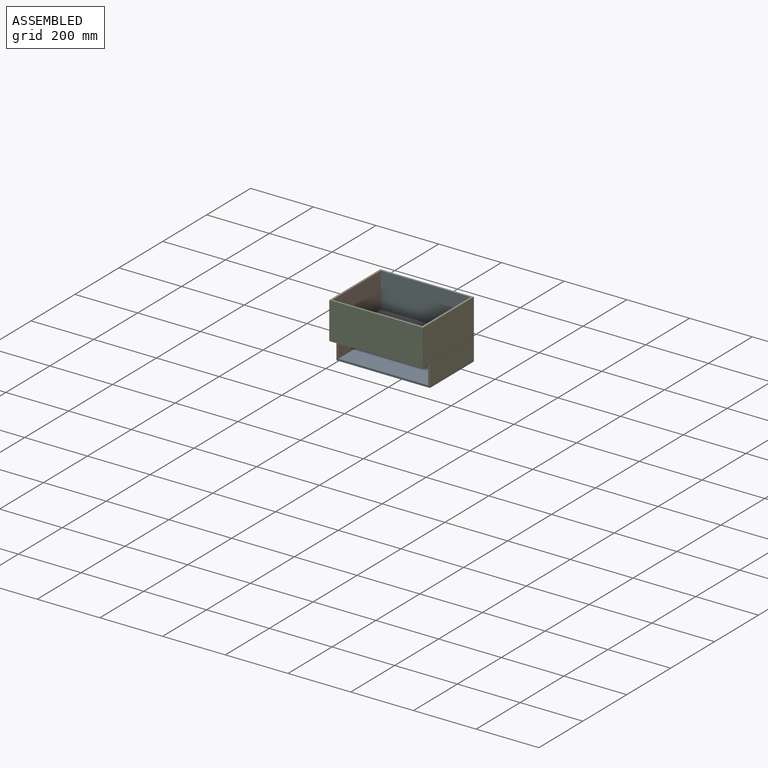
[diagram: assembled view]
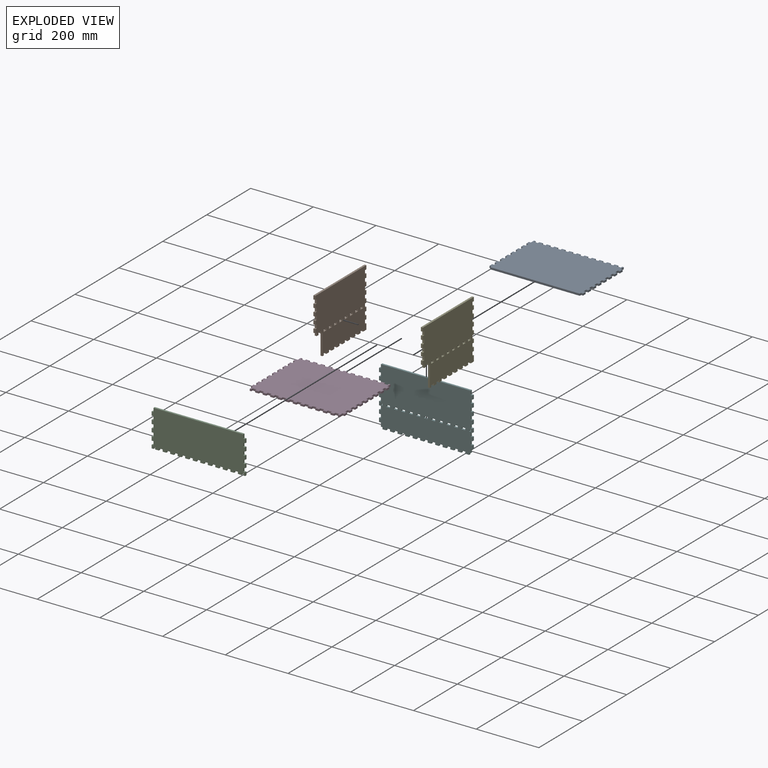
[diagram: exploded view]
GUIDED TOUR — MATED ASSEMBLY (Onshape document dc8e5bcc3b40e1b9c9413de5, AutoMate assembly dc8e5bcc3b40e1b9c9413de5_087644dee2c179cdf5d337a4_95e92eb41b837dada9675b92_default)

This assembly has 6 components, labeled P0..P5 below (a component is one placed occurrence of a part; the same part can appear more than once), held together by 5 mates. A mate is a constraint between two components; its type names the relative motion it leaves free:
  FASTENED — locks the two components together rigidly (no relative motion).
Axis/direction vectors are unit vectors and 'through' points are millimeter coordinates, both in the assembly's world frame.

MATES
  1. FASTENED "Fastened 4": P2 <-> P3, direction (0.000, -1.000, 0.000) through (420.35, -259.68, 232.40) mm
  2. FASTENED "Fastened 1": P4 <-> P3, direction (1.000, 0.000, 0.000) through (431.55, -233.48, 232.40) mm
  3. FASTENED "Fastened 5": P5 <-> P0, direction (0.000, 1.000, 0.000) through (420.35, -27.28, 164.70) mm
  4. FASTENED "Fastened 2": P3 <-> P1, direction (-1.000, 0.000, 0.000) through (133.15, -245.48, 232.40) mm
  5. FASTENED "Fastened 3": P5 <-> P3, direction (0.000, 1.000, 0.000) through (420.35, -27.28, 232.40) mm

ASSEMBLY ORDER
  1. P4 — the base component [order verified]
  2. P1 [order verified]
  3. P5 [order verified]
  4. P0 [order verified]
  5. P3 [order verified]
  6. P2 [order verified]
Order-tag legend:
  [order verified] — this step's position reverses a verified removal order: the component was checked to insert without passing through the ones already placed.

Of the 6 components, 6 carry the full construction recipe — the FeatureScript program that regenerates the part's solid from scratch; the rest are supplied as boundary geometry only.
Each toured component is shown spotlighted twice — in the assembled view, then in the exploded view, where a leader line traces a displaced component back to its assembled socket (saturated green if recipe-attached, orange if geometry-only; every other component desaturated gray) — followed by its recipe or geometry summary and the mates that hold it.
NOTE — document 3 of 3 of this assembly tour. The two overview renders and the header above are repeated from document 1; the component sections below continue where the previous document stopped.
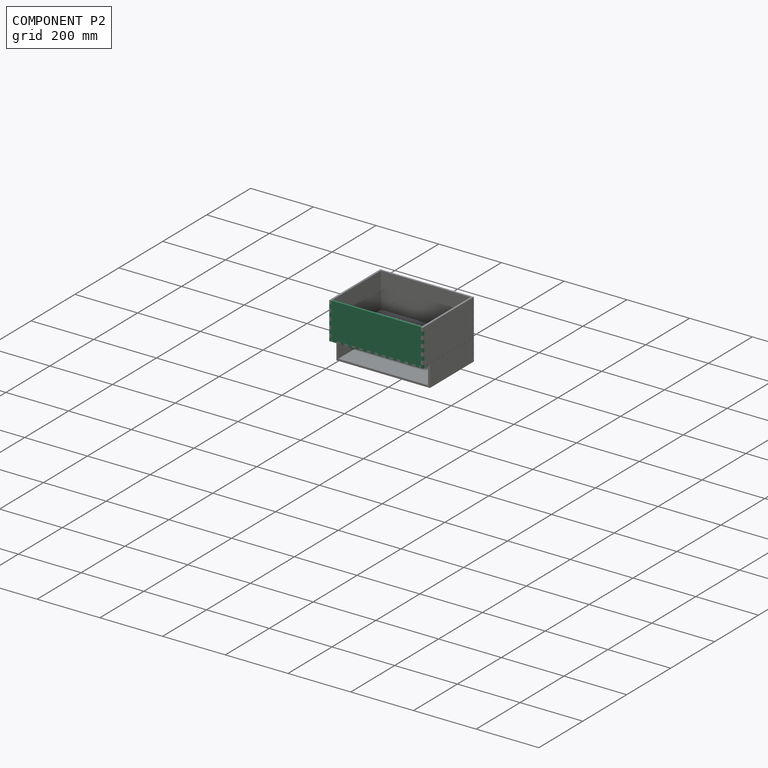
[diagram: component P2 — assembled]
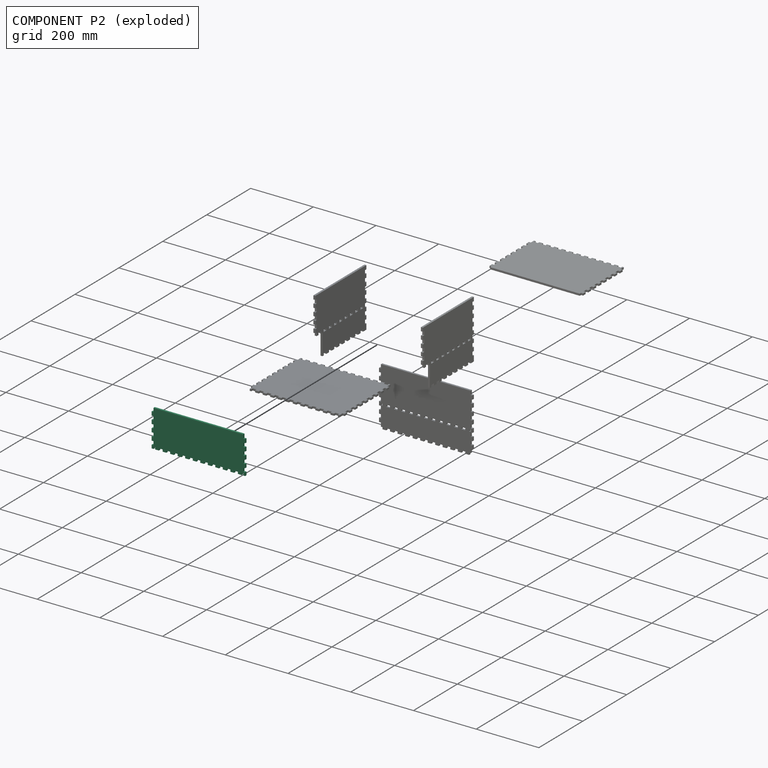
[diagram: component P2 — exploded]
COMPONENT P2 — recipe-attached (CADFS 00861206, mesh-verified: the recipe's output STEP matches this component's geometry to below the mesh-comparison resolution (tessellation chordal tolerance ~0.482 mm)).
Held by: FASTENED mate "Fastened 4" to P3.
Construction recipe (FeatureScript — the CAD program that rebuilds this solid; sketch coordinates are in the units given by the * unit suffixes, e.g. mm):

FeatureScript 1511;
import(path : "onshape/std/geometry.fs", version : "1511.0");
import(path : "onshape/std/common.fs", version : "1511.0");
const mm = millimeter;
const VERTEX = EntityType.VERTEX;
const EDGE = EntityType.EDGE;
const FACE = EntityType.FACE;
const BODY = EntityType.BODY;
function v(x, y){return vector(x, y);}
function OD(order){return orderDisambiguation(order);}
function OSD(set){return originalSetDisambiguation(set);}
function TD(topology){return topologyDisambiguation(topology);}
function TDD(query){return trueDependencyDisambiguation(query);}
function sQuery(a, b, c) {return sketchEntityQuery(a, b, c);}

annotation { "Feature Type Name" : "Feature", "Feature Type Description" : "" }
export const myFeature = defineFeature(function(context is Context, id is Id, definition is map)
    precondition{}
    {
        {
            var Q0;
            Q0=qCreatedBy(makeId("Front.planeOp"),FACE);
            var sketch = newSketch(context, id + "F0", { "sketchPlane" : qUnion([Q0])});
            skLineSegment(sketch, "E0.bottom", {"start": v(143, 90) * mm, "end": v(-143, 90) * mm});
            skLineSegment(sketch, "E0.top", {"start": v(143, -90) * mm, "end": v(-143, -90) * mm});
            skLineSegment(sketch, "E0.left", {"start": v(143, 90) * mm, "end": v(143, -90) * mm});
            skLineSegment(sketch, "E0.right", {"start": v(-143, 90) * mm, "end": v(-143, -90) * mm});
            skPoint(sketch, "E0.middle", {"position": v(0, 0) * mm});
            skSolve(sketch);
        }
        {
            var Q0;
            Q0=makeQuery(id+"F0.imprint","IMPRINT",FACE,{"disambiguationData":[TD([[makeQuery(id+"F0.imprint","IMPRINT",EDGE,{"derivedFrom":sQuery(id+"F0.wireOp",EDGE,"E0.bottom")}),1.0]])]});
            extrude(context, id + "F1", {"entities" : qUnion([Q0]), "depth" : 6.2 * mm, "offsetDistance" : 25 * mm});
        }
        {
            var Q0;
            Q0=makeQuery(id+"F1.opExtrude","CAP_FACE",FACE,{"disambiguationData":[OSD([sQuery(id+"F0.wireOp",EDGE,"E0.bottom"),sQuery(id+"F0.wireOp",EDGE,"E0.top"),sQuery(id+"F0.wireOp",EDGE,"E0.left"),sQuery(id+"F0.wireOp",EDGE,"E0.right")])],"isStart":false});
            var sketch = newSketch(context, id + "F2", { "sketchPlane" : qUnion([Q0])});
            skLineSegment(sketch, "E1", {"start": v(-143, -90) * mm, "end": v(-143, -28.5) * mm, "construction": true});
            skLineSegment(sketch, "E2", {"start": v(-143, -28.5) * mm, "end": v(0, -28.5) * mm, "construction": true});
            skLineSegment(sketch, "E3", {"start": v(0, -28.5) * mm, "end": v(0, -22.3) * mm, "construction": true});
            skLineSegment(sketch, "E4.bottom", {"start": v(6, -22.3) * mm, "end": v(-6, -22.3) * mm});
            skLineSegment(sketch, "E4.top", {"start": v(6, -28.5) * mm, "end": v(-6, -28.5) * mm});
            skLineSegment(sketch, "E4.left", {"start": v(6, -22.3) * mm, "end": v(6, -28.5) * mm});
            skLineSegment(sketch, "E4.right", {"start": v(-6, -22.3) * mm, "end": v(-6, -28.5) * mm});
            skPoint(sketch, "E4.middle", {"position": v(0, -25.4) * mm});
            skLineSegment(sketch, "E5.1.0.0", {"start": v(30, -22.3) * mm, "end": v(18, -22.3) * mm});
            skLineSegment(sketch, "E5.1.0.1", {"start": v(30, -22.3) * mm, "end": v(30, -28.5) * mm});
            skLineSegment(sketch, "E5.1.0.2", {"start": v(30, -28.5) * mm, "end": v(18, -28.5) * mm});
            skLineSegment(sketch, "E5.1.0.3", {"start": v(18, -22.3) * mm, "end": v(18, -28.5) * mm});
            skLineSegment(sketch, "E5.2.0.0", {"start": v(54, -22.3) * mm, "end": v(42, -22.3) * mm});
            skLineSegment(sketch, "E5.2.0.1", {"start": v(54, -22.3) * mm, "end": v(54, -28.5) * mm});
            skLineSegment(sketch, "E5.2.0.2", {"start": v(54, -28.5) * mm, "end": v(42, -28.5) * mm});
            skLineSegment(sketch, "E5.2.0.3", {"start": v(42, -22.3) * mm, "end": v(42, -28.5) * mm});
            skLineSegment(sketch, "E5.3.0.0", {"start": v(78, -22.3) * mm, "end": v(66, -22.3) * mm});
            skLineSegment(sketch, "E5.3.0.1", {"start": v(78, -22.3) * mm, "end": v(78, -28.5) * mm});
            skLineSegment(sketch, "E5.3.0.2", {"start": v(78, -28.5) * mm, "end": v(66, -28.5) * mm});
            skLineSegment(sketch, "E5.3.0.3", {"start": v(66, -22.3) * mm, "end": v(66, -28.5) * mm});
            skLineSegment(sketch, "E5.4.0.0", {"start": v(102, -22.3) * mm, "end": v(90, -22.3) * mm});
            skLineSegment(sketch, "E5.4.0.1", {"start": v(102, -22.3) * mm, "end": v(102, -28.5) * mm});
            skLineSegment(sketch, "E5.4.0.2", {"start": v(102, -28.5) * mm, "end": v(90, -28.5) * mm});
            skLineSegment(sketch, "E5.4.0.3", {"start": v(90, -22.3) * mm, "end": v(90, -28.5) * mm});
            skLineSegment(sketch, "E5.5.0.0", {"start": v(126, -22.3) * mm, "end": v(114, -22.3) * mm});
            skLineSegment(sketch, "E5.5.0.1", {"start": v(126, -22.3) * mm, "end": v(126, -28.5) * mm});
            skLineSegment(sketch, "E5.5.0.2", {"start": v(126, -28.5) * mm, "end": v(114, -28.5) * mm});
            skLineSegment(sketch, "E5.5.0.3", {"start": v(114, -22.3) * mm, "end": v(114, -28.5) * mm});
            skLineSegment(sketch, "E5.direction1", {"start": v(-6, -22.3) * mm, "end": v(18, -22.3) * mm, "construction": true});
            skLineSegment(sketch, "E6.MirrorCS", {"start": v(-78, -22.3) * mm, "end": v(-78, -28.5) * mm});
            skLineSegment(sketch, "E7.MirrorCS", {"start": v(-66, -22.3) * mm, "end": v(-66, -28.5) * mm});
            skLineSegment(sketch, "E8.MirrorCS", {"start": v(-102, -22.3) * mm, "end": v(-102, -28.5) * mm});
            skLineSegment(sketch, "E9.MirrorCS", {"start": v(-90, -22.3) * mm, "end": v(-90, -28.5) * mm});
            skLineSegment(sketch, "E10.MirrorCS", {"start": v(-54, -22.3) * mm, "end": v(-54, -28.5) * mm});
            skLineSegment(sketch, "E11.MirrorCS", {"start": v(-42, -22.3) * mm, "end": v(-42, -28.5) * mm});
            skLineSegment(sketch, "E12.MirrorCS", {"start": v(-126, -22.3) * mm, "end": v(-126, -28.5) * mm});
            skLineSegment(sketch, "E13.MirrorCS", {"start": v(-18, -22.3) * mm, "end": v(-18, -28.5) * mm});
            skLineSegment(sketch, "E14.MirrorCS", {"start": v(-30, -22.3) * mm, "end": v(-30, -28.5) * mm});
            skLineSegment(sketch, "E15.MirrorCS", {"start": v(-114, -22.3) * mm, "end": v(-114, -28.5) * mm});
            skLineSegment(sketch, "E16.MirrorCS", {"start": v(-78, -28.5) * mm, "end": v(-66, -28.5) * mm});
            skLineSegment(sketch, "E17.MirrorCS", {"start": v(-102, -22.3) * mm, "end": v(-90, -22.3) * mm});
            skLineSegment(sketch, "E18.MirrorCS", {"start": v(-102, -28.5) * mm, "end": v(-90, -28.5) * mm});
            skLineSegment(sketch, "E19.MirrorCS", {"start": v(-126, -22.3) * mm, "end": v(-114, -22.3) * mm});
            skLineSegment(sketch, "E20.MirrorCS", {"start": v(-54, -22.3) * mm, "end": v(-42, -22.3) * mm});
            skLineSegment(sketch, "E21.MirrorCS", {"start": v(-54, -28.5) * mm, "end": v(-42, -28.5) * mm});
            skLineSegment(sketch, "E22.MirrorCS", {"start": v(-78, -22.3) * mm, "end": v(-66, -22.3) * mm});
            skLineSegment(sketch, "E23.MirrorCS", {"start": v(-126, -28.5) * mm, "end": v(-114, -28.5) * mm});
            skLineSegment(sketch, "E24.MirrorCS", {"start": v(-30, -22.3) * mm, "end": v(-18, -22.3) * mm});
            skLineSegment(sketch, "E25.MirrorCS", {"start": v(-30, -28.5) * mm, "end": v(-18, -28.5) * mm});
            skLineSegment(sketch, "E26.0.6.0", {"start": v(150, -22.3) * mm, "end": v(138, -22.3) * mm});
            skLineSegment(sketch, "E26.3.6.0", {"start": v(150, -22.3) * mm, "end": v(150, -28.5) * mm});
            skLineSegment(sketch, "E26.6.6.0", {"start": v(150, -28.5) * mm, "end": v(138, -28.5) * mm});
            skLineSegment(sketch, "E26.9.6.0", {"start": v(138, -22.3) * mm, "end": v(138, -28.5) * mm});
            skLineSegment(sketch, "E27.MirrorCS", {"start": v(-150, -22.3) * mm, "end": v(-138, -22.3) * mm});
            skLineSegment(sketch, "E28.MirrorCS", {"start": v(-150, -28.5) * mm, "end": v(-138, -28.5) * mm});
            skLineSegment(sketch, "E29.MirrorCS", {"start": v(-138, -22.3) * mm, "end": v(-138, -28.5) * mm});
            skLineSegment(sketch, "E30.MirrorCS", {"start": v(-150, -22.3) * mm, "end": v(-150, -28.5) * mm});
            skSolve(sketch);
        }
        {
            var Q0;
            Q0=makeQuery(id+"F2.imprint","IMPRINT",FACE,{"disambiguationData":[TD([[makeQuery(id+"F2.imprint","IMPRINT",EDGE,{"derivedFrom":sQuery(id+"F2.wireOp",EDGE,"E12.MirrorCS")}),1.0]])]});
            var Q1;
            Q1=makeQuery(id+"F2.imprint","IMPRINT",FACE,{"disambiguationData":[TD([[makeQuery(id+"F2.imprint","IMPRINT",EDGE,{"derivedFrom":sQuery(id+"F2.wireOp",EDGE,"E8.MirrorCS")}),1.0]])]});
            var Q2;
            Q2=makeQuery(id+"F2.imprint","IMPRINT",FACE,{"disambiguationData":[TD([[makeQuery(id+"F2.imprint","IMPRINT",EDGE,{"derivedFrom":sQuery(id+"F2.wireOp",EDGE,"E6.MirrorCS")}),1.0]])]});
            var Q3;
            Q3=makeQuery(id+"F2.imprint","IMPRINT",FACE,{"disambiguationData":[TD([[makeQuery(id+"F2.imprint","IMPRINT",EDGE,{"derivedFrom":sQuery(id+"F2.wireOp",EDGE,"E10.MirrorCS")}),1.0]])]});
            var Q4;
            Q4=makeQuery(id+"F2.imprint","IMPRINT",FACE,{"disambiguationData":[TD([[makeQuery(id+"F2.imprint","IMPRINT",EDGE,{"derivedFrom":sQuery(id+"F2.wireOp",EDGE,"E13.MirrorCS")}),-1.0]])]});
            var Q5;
            Q5=makeQuery(id+"F2.imprint","IMPRINT",FACE,{"disambiguationData":[TD([[makeQuery(id+"F2.imprint","IMPRINT",EDGE,{"derivedFrom":sQuery(id+"F2.wireOp",EDGE,"E4.bottom")}),1.0]])]});
            var Q6;
            Q6=makeQuery(id+"F2.imprint","IMPRINT",FACE,{"disambiguationData":[TD([[makeQuery(id+"F2.imprint","IMPRINT",EDGE,{"derivedFrom":sQuery(id+"F2.wireOp",EDGE,"E5.1.0.0")}),1.0]])]});
            var Q7;
            Q7=makeQuery(id+"F2.imprint","IMPRINT",FACE,{"disambiguationData":[TD([[makeQuery(id+"F2.imprint","IMPRINT",EDGE,{"derivedFrom":sQuery(id+"F2.wireOp",EDGE,"E5.2.0.0")}),1.0]])]});
            var Q8;
            Q8=makeQuery(id+"F2.imprint","IMPRINT",FACE,{"disambiguationData":[TD([[makeQuery(id+"F2.imprint","IMPRINT",EDGE,{"derivedFrom":sQuery(id+"F2.wireOp",EDGE,"E5.3.0.0")}),1.0]])]});
            var Q9;
            Q9=makeQuery(id+"F2.imprint","IMPRINT",FACE,{"disambiguationData":[TD([[makeQuery(id+"F2.imprint","IMPRINT",EDGE,{"derivedFrom":sQuery(id+"F2.wireOp",EDGE,"E5.4.0.0")}),1.0]])]});
            var Q10;
            Q10=makeQuery(id+"F2.imprint","IMPRINT",FACE,{"disambiguationData":[TD([[makeQuery(id+"F2.imprint","IMPRINT",EDGE,{"derivedFrom":sQuery(id+"F2.wireOp",EDGE,"E5.5.0.0")}),1.0]])]});
            var Q11;
            {var subQ0=sQuery(id+"F2.wireOp",EDGE,"E29.MirrorCS");Q11=makeQuery(id+"F2.imprint","IMPRINT",FACE,{"disambiguationData":[TD([[makeQuery(id+"F2.imprint","IMPRINT",EDGE,{"derivedFrom":subQ0}),-1.0]])]});}
            var Q12;
            {var subQ0=sQuery(id+"F2.wireOp",EDGE,"E26.9.6.0");Q12=makeQuery(id+"F2.imprint","IMPRINT",FACE,{"disambiguationData":[TD([[makeQuery(id+"F2.imprint","IMPRINT",EDGE,{"derivedFrom":subQ0}),1.0]])]});}
            extrude(context, id + "F3", {"entities" : qUnion([Q0, Q1, Q2, Q3, Q4, Q5, Q6, Q7, Q8, Q9, Q10, Q11, Q12]), "operationType" : NewBodyOperationType.REMOVE, "endBound" : BoundingType.THROUGH_ALL, "oppositeDirection" : true, "depth" : 25 * mm, "offsetDistance" : 25 * mm});
        }
        {
            var Q0;
            Q0=makeQuery(id+"F1.opExtrude","CAP_FACE",FACE,{"disambiguationData":[OSD([sQuery(id+"F0.wireOp",EDGE,"E0.bottom"),sQuery(id+"F0.wireOp",EDGE,"E0.top"),sQuery(id+"F0.wireOp",EDGE,"E0.left"),sQuery(id+"F0.wireOp",EDGE,"E0.right")])],"isStart":false});
            var sketch = newSketch(context, id + "F4", { "sketchPlane" : qUnion([Q0])});
            skLineSegment(sketch, "E31.bottom", {"start": v(-143, -28.5) * mm, "end": v(143, -28.5) * mm});
            skLineSegment(sketch, "E31.top", {"start": v(-143, -90) * mm, "end": v(143, -90) * mm});
            skLineSegment(sketch, "E31.left", {"start": v(-143, -28.5) * mm, "end": v(-143, -90) * mm});
            skLineSegment(sketch, "E31.right", {"start": v(143, -28.5) * mm, "end": v(143, -90) * mm});
            skSolve(sketch);
        }
        {
            var Q0;
            Q0 = qSketchRegion(id + "F4", true);
            extrude(context, id + "F5", {"entities" : qUnion([Q0]), "operationType" : NewBodyOperationType.REMOVE, "endBound" : BoundingType.THROUGH_ALL, "oppositeDirection" : true, "depth" : 25 * mm, "offsetDistance" : 25 * mm});
        }
        {
            var Q0;
            Q0=makeQuery(id+"F1.opExtrude","CAP_FACE",FACE,{"disambiguationData":[OSD([sQuery(id+"F0.wireOp",EDGE,"E0.bottom"),sQuery(id+"F0.wireOp",EDGE,"E0.top"),sQuery(id+"F0.wireOp",EDGE,"E0.left"),sQuery(id+"F0.wireOp",EDGE,"E0.right")])],"isStart":false});
            var sketch = newSketch(context, id + "F6", { "sketchPlane" : qUnion([Q0])});
            skLineSegment(sketch, "E32", {"start": v(-143, 90) * mm, "end": v(-143, 78) * mm, "construction": true});
            skLineSegment(sketch, "E33.bottom", {"start": v(-143, 78) * mm, "end": v(-149.2, 78) * mm});
            skLineSegment(sketch, "E33.top", {"start": v(-143, 66) * mm, "end": v(-149.2, 66) * mm});
            skLineSegment(sketch, "E33.left", {"start": v(-143, 78) * mm, "end": v(-143, 66) * mm});
            skLineSegment(sketch, "E33.right", {"start": v(-149.2, 78) * mm, "end": v(-149.2, 66) * mm});
            skLineSegment(sketch, "E34.0.1.0", {"start": v(-149.2, 54) * mm, "end": v(-149.2, 42) * mm});
            skLineSegment(sketch, "E34.0.1.1", {"start": v(-143, 54) * mm, "end": v(-149.2, 54) * mm});
            skLineSegment(sketch, "E34.0.1.2", {"start": v(-143, 54) * mm, "end": v(-143, 42) * mm});
            skLineSegment(sketch, "E34.0.1.3", {"start": v(-143, 42) * mm, "end": v(-149.2, 42) * mm});
            skLineSegment(sketch, "E34.0.2.0", {"start": v(-149.2, 30) * mm, "end": v(-149.2, 18) * mm});
            skLineSegment(sketch, "E34.0.2.1", {"start": v(-143, 30) * mm, "end": v(-149.2, 30) * mm});
            skLineSegment(sketch, "E34.0.2.2", {"start": v(-143, 30) * mm, "end": v(-143, 18) * mm});
            skLineSegment(sketch, "E34.0.2.3", {"start": v(-143, 18) * mm, "end": v(-149.2, 18) * mm});
            skLineSegment(sketch, "E34.0.3.0", {"start": v(-149.2, 6) * mm, "end": v(-149.2, -6) * mm});
            skLineSegment(sketch, "E34.0.3.1", {"start": v(-143, 6) * mm, "end": v(-149.2, 6) * mm});
            skLineSegment(sketch, "E34.0.3.2", {"start": v(-143, 6) * mm, "end": v(-143, -6) * mm});
            skLineSegment(sketch, "E34.0.3.3", {"start": v(-143, -6) * mm, "end": v(-149.2, -6) * mm});
            skLineSegment(sketch, "E34.0.4.0", {"start": v(-149.2, -18) * mm, "end": v(-149.2, -28.5) * mm});
            skLineSegment(sketch, "E34.0.4.1", {"start": v(-143, -18) * mm, "end": v(-149.2, -18) * mm});
            skLineSegment(sketch, "E34.0.4.2", {"start": v(-143, -18) * mm, "end": v(-143, -28.5) * mm});
            skLineSegment(sketch, "E34.direction1", {"start": v(-149.2, 66) * mm, "end": v(-124.2, 66) * mm, "construction": true});
            skLineSegment(sketch, "E34.direction2", {"start": v(-149.2, 66) * mm, "end": v(-149.2, 42) * mm, "construction": true});
            skLineSegment(sketch, "E35", {"start": v(-143, -28.5) * mm, "end": v(-149.2, -28.5) * mm});
            skPoint(sketch, "E36.orphan", {"position": v(-149.2, -30) * mm});
            skLineSegment(sketch, "E37.MirrorCS", {"start": v(149.2, 54) * mm, "end": v(149.2, 42) * mm});
            skLineSegment(sketch, "E38.MirrorCS", {"start": v(143, 78) * mm, "end": v(149.2, 78) * mm});
            skLineSegment(sketch, "E39.MirrorCS", {"start": v(143, 42) * mm, "end": v(149.2, 42) * mm});
            skLineSegment(sketch, "E40.MirrorCS", {"start": v(143, 30) * mm, "end": v(149.2, 30) * mm});
            skLineSegment(sketch, "E41.MirrorCS", {"start": v(143, 78) * mm, "end": v(143, 66) * mm});
            skLineSegment(sketch, "E42.MirrorCS", {"start": v(143, 54) * mm, "end": v(149.2, 54) * mm});
            skLineSegment(sketch, "E43.MirrorCS", {"start": v(149.2, 6) * mm, "end": v(149.2, -6) * mm});
            skLineSegment(sketch, "E44.MirrorCS", {"start": v(143, 18) * mm, "end": v(149.2, 18) * mm});
            skLineSegment(sketch, "E45.MirrorCS", {"start": v(149.2, 66) * mm, "end": v(149.2, 42) * mm, "construction": true});
            skLineSegment(sketch, "E46.MirrorCS", {"start": v(143, -6) * mm, "end": v(149.2, -6) * mm});
            skLineSegment(sketch, "E47.MirrorCS", {"start": v(143, 6) * mm, "end": v(149.2, 6) * mm});
            skLineSegment(sketch, "E48.MirrorCS", {"start": v(149.2, 30) * mm, "end": v(149.2, 18) * mm});
            skLineSegment(sketch, "E49.MirrorCS", {"start": v(143, 6) * mm, "end": v(143, -6) * mm});
            skLineSegment(sketch, "E50.MirrorCS", {"start": v(149.2, 78) * mm, "end": v(149.2, 66) * mm});
            skLineSegment(sketch, "E51.MirrorCS", {"start": v(143, 54) * mm, "end": v(143, 42) * mm});
            skLineSegment(sketch, "E52.MirrorCS", {"start": v(143, 66) * mm, "end": v(149.2, 66) * mm});
            skLineSegment(sketch, "E53.MirrorCS", {"start": v(143, -18) * mm, "end": v(149.2, -18) * mm});
            skLineSegment(sketch, "E54.MirrorCS", {"start": v(143, 30) * mm, "end": v(143, 18) * mm});
            skLineSegment(sketch, "E55.MirrorCS", {"start": v(149.2, -18) * mm, "end": v(149.2, -28.5) * mm});
            skLineSegment(sketch, "E56.MirrorCS", {"start": v(143, 90) * mm, "end": v(143, 78) * mm, "construction": true});
            skLineSegment(sketch, "E57.MirrorCS", {"start": v(149.2, 66) * mm, "end": v(124.2, 66) * mm, "construction": true});
            skLineSegment(sketch, "E58.MirrorCS", {"start": v(143, -28.5) * mm, "end": v(149.2, -28.5) * mm});
            skLineSegment(sketch, "E59.MirrorCS", {"start": v(143, -18) * mm, "end": v(143, -28.5) * mm});
            skSolve(sketch);
        }
        {
            var Q0;
            Q0 = qSketchRegion(id + "F6", true);
            extrude(context, id + "F7", {"entities" : qUnion([Q0]), "operationType" : NewBodyOperationType.ADD, "oppositeDirection" : true, "depth" : 6.2 * mm, "offsetDistance" : 25 * mm});
        }
    });
PROVENANCE & LICENSES
Assembly (occurrences, transforms, mates, per-part STEP geometry): AutoMate dataset, Zenodo record 7776208, CC0.
Construction recipes: CADFS (HuggingFace VladPyatov/CADFS, CC-BY-4.0, layered over the ABC dataset), FeatureScript reconstruction programs keyed by ABC model id.
Join: ABC meta listings map ABC model id -> Onshape documentId; within a shared document, parts are matched by geometric signature (bounding-box dims + volume at 0.1% relative tolerance, exact B-rep face/solid counts).
Verification: 6 of this assembly's 6 components carry a recipe attachment, and every attachment is mesh-verified: the CADFS STEP and the AutoMate member STEP were compared as meshes in their shared local frame (symmetric sampled-point-to-mesh distance); worst across the 6 attachments: below the mesh-comparison resolution (tessellation chordal tolerance ~0.567 mm) on a 378 mm part.
Renders: orthographic iso camera (az 35 / el 25); the floor grid conveys scale (grid pitch printed in each image; no ruler). In the exploded view each component is displaced by its stored offset vector: the offsets alone carry the explosion direction (mate normal/axis signs are not orientation cues and do not encode it), and separation distances are assigned per mate-chain, not proportionally to assembly-order depth.
